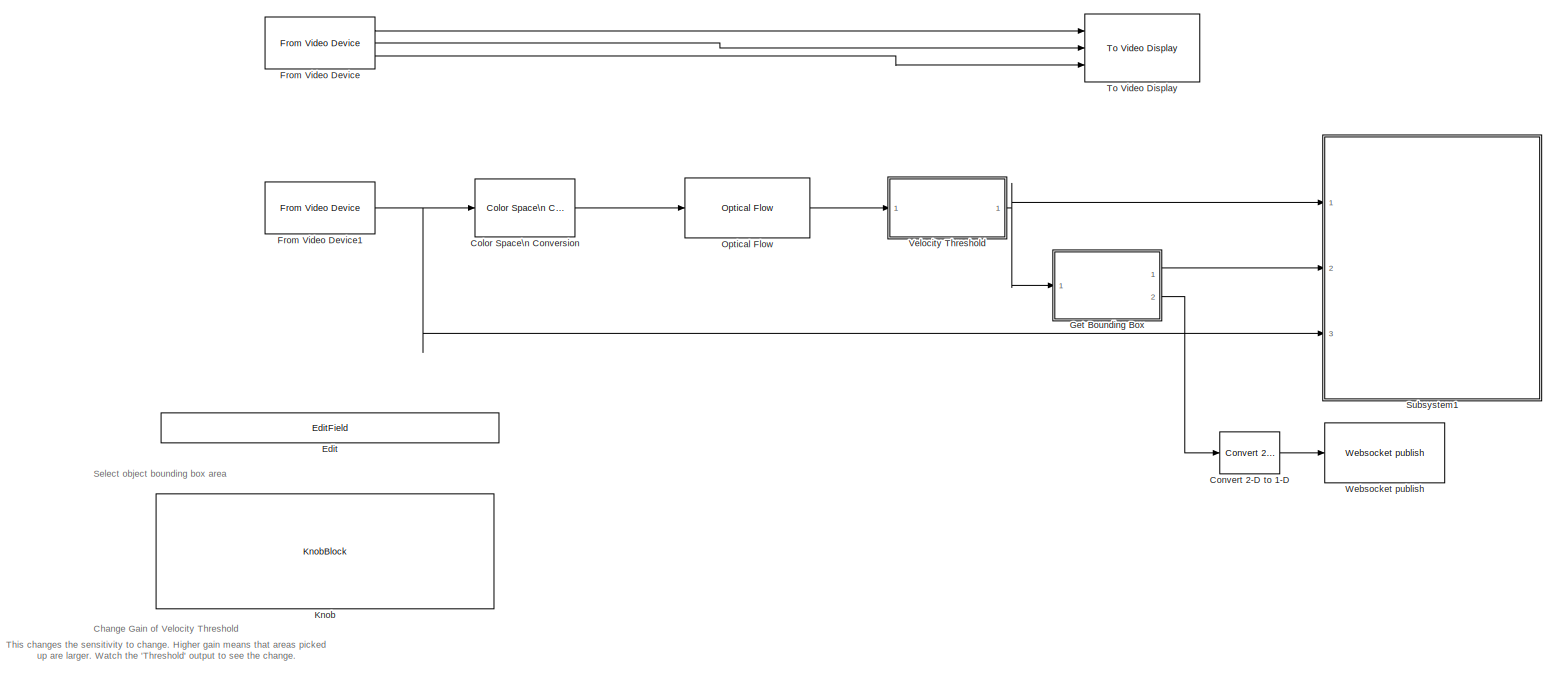
[diagram: root canvas - part 1/1, most of the canvas]
MODEL Optical_Flow_Test
KIND model
BLOCK [Reference] Color Space\n Conversion  REF=visionconversions/Color Space\n Conversion
  MultiThreadCoSim = auto
  Ports = [1, 1]
  SID = 9
  SourceBlock = visionconversions/Color Space\n Conversion
  SourceProductBaseCode = VP
  SourceProductName = Computer Vision Toolbox
  SourceType = Color Space Conversion
  conversion = Obsolete
  conversionActive = R'G'B' to intensity
  imagePorts = One multidimensional signal
  rec = Rec. 601 (SDTV)
  sys = 1125/60/2:1
  wp_str = D65
BLOCK [Reference] Convert 2-D to 1-D  REF=dspsigattribs/Convert 2-D to 1-D
  Ports = [1, 1]
  SID = 49
  SourceBlock = dspsigattribs/Convert 2-D to 1-D
  SourceProductBaseCode = DS
  SourceProductName = DSP System Toolbox
  SourceType = Convert 2-D to 1-D
BLOCK [EditField] Edit
  Alignment = Center
  BindingPersistence = DataTag1
  LabelPosition = Bottom
  SID = 39
  ShowInitialText = on
BLOCK [Reference] From Video Device  REF=imaqlib/From Video Device
  BayerSensorAlignment = grbg
  BlockHandle = 4.0002
  CanDoHWTrigger = no
  Commented = on
  DataType = double
  DevXMLPath = <path>
  Device = winvideo 1 (USB_Camera)
  DeviceMenu = winvideo 1 (USB_Camera)
  EnableHWTrigger = off
  EngLibPath = <path>
  EngXMLPath = <path>
  ImaqMode = off
  MultiThreadCoSim = auto
  ObjConstructor = videoinput('winvideo', 1)
  OutputPortsMode = Separate color signals
  Ports = [0, 3]
  ROIColumn = 0
  ROIHeight = 1080
  ROIPosition = [0 0 1080 1920]
  ROIRow = 0
  ROIWidth = 1920
  ReturnedColorSpace = rgb
  SID = 1
  SampleTime = 1/30
  SourceBlock = imaqlib/From Video Device
  SourceProductBaseCode = IA
  SourceProductName = Image Acquisition Toolbox
  SourceType = From Video Device
  TriggerConfiguration = none/none
  UserData = DataTag2
  UserDataPersistent = on
  VideoFormat = MJPG_1920x1080
  VideoFormatMenu = MJPG_1920x1080
  VideoSource = input1
BLOCK [Reference] From Video Device1  REF=imaqlib/From Video Device
  BayerSensorAlignment = grbg
  BlockHandle = 4.0002
  CanDoHWTrigger = no
  DataType = single
  DevXMLPath = <path>
  Device = winvideo 1 (USB_Camera)
  DeviceMenu = winvideo 1 (USB_Camera)
  EnableHWTrigger = off
  EngLibPath = <path>
  EngXMLPath = <path>
  ImaqMode = off
  MultiThreadCoSim = auto
  ObjConstructor = videoinput('winvideo', 1)
  OutputPortsMode = One multidimensional signal
  Ports = [0, 1]
  ROIColumn = 0
  ROIHeight = 1080
  ROIPosition = [0 0 1080 1920]
  ROIRow = 0
  ROIWidth = 1920
  ReturnedColorSpace = rgb
  SID = 4
  SampleTime = 1/30
  SourceBlock = imaqlib/From Video Device
  SourceProductBaseCode = IA
  SourceProductName = Image Acquisition Toolbox
  SourceType = From Video Device
  TriggerConfiguration = none/none
  UserData = DataTag3
  UserDataPersistent = on
  VideoFormat = MJPG_1920x1080
  VideoFormatMenu = MJPG_1920x1080
  VideoSource = input1
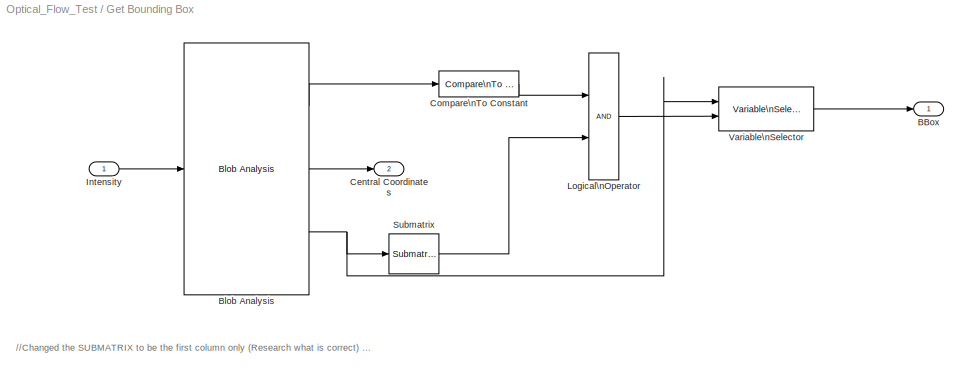
BLOCK [SubSystem] Get Bounding Box
  Ports = [1, 2]
  RequestExecContextInheritance = off
  SID = 32
BLOCK [Outport] Get Bounding Box/BBox
  IconDisplay = Port number
  SID = 34
BLOCK [Reference] Get Bounding Box/Blob Analysis  REF=visionstatistics/Blob Analysis
  LockScale = off
  MultiThreadCoSim = auto
  Ports = [1, 3]
  SID = 35
  SourceBlock = visionstatistics/Blob Analysis
  SourceProductBaseCode = VP
  SourceProductName = Computer Vision Toolbox
  SourceType = Blob Analysis
  Tag = vipblks_row_conv
  accumFracLength = 0
  accumMode = Binary point scaling
  accumSlope = 2^0
  accumWordLength = 32
  angle = off
  area = on
  bBox = on
  centroid = on
  conn = 8
  eccentricity = off
  equivDiameterSq = off
  excludeBorderBlob = off
  extent = off
  fillValues = -1
  firstCoeffFracLength = 14
  firstCoeffMode = Binary point scaling
  firstCoeffSlope = 2^-14
  firstCoeffWordLength = 16
  isCount = off
  isFill = on
  isLabel = off
  isOutVarDim = off
  majorAxis = off
  maxArea = intmax('uint32')
  maxBlobs = 50
  memoryFracLength = 16
  memoryMode = Same as product output
  memorySlope = 2^-16
  memoryWordLength = 32
  minArea = 0
  minorAxis = off
  outDT = double
  outputFracLength = 16
  outputMode = Binary point scaling
  outputSlope = 2^-16
  outputWordLength = 32
  overflowMode = off
  perimeter = off
  prodOutputFracLength = 16
  prodOutputMode = Binary point scaling
  prodOutputSlope = 2^-16
  prodOutputWordLength = 32
  roundingMode = Floor
  secondCoeffFracLength = 16
  secondCoeffMode = Binary point scaling
  secondCoeffSlope = 2^-16
  secondCoeffWordLength = 32
  useMaxArea = off
  useMinArea = off
  warnIfNumBlobsExceeded = on
BLOCK [Outport] Get Bounding Box/Central Coordinates
  IconDisplay = Port number
  Port = 2
  SID = 45
BLOCK [Reference] Get Bounding Box/Compare\nTo Constant  REF=simulink/Logic and Bit\nOperations/Compare\nTo Constant
  OutDataTypeStr = boolean
  Ports = [1, 1]
  SID = 36
  SourceBlock = simulink/Logic and Bit\nOperations/Compare\nTo Constant
  SourceProductBaseCode = SL
  SourceProductName = Simulink
  SourceType = Compare To Constant
  ZeroCross = on
  const = 1500
  relop = >=
BLOCK [Inport] Get Bounding Box/Intensity
  IconDisplay = Port number
  SID = 33
BLOCK [Logic] Get Bounding Box/Logical\nOperator
  AllPortsSameDT = off
  OutDataTypeStr = boolean
  Ports = [2, 1]
  SID = 43
BLOCK [Reference] Get Bounding Box/Submatrix  REF=dspmtrx3/Submatrix
  ColEndIndex = 1
  ColEndMode = Last
  ColSpan = One column
  ColStartIndex = 1
  ColStartMode = First
  MultiThreadCoSim = auto
  Ports = [1, 1]
  RowEndIndex = 1
  RowEndMode = Last
  RowSpan = All rows
  RowStartIndex = 1
  RowStartMode = First
  SID = 42
  SourceBlock = dspmtrx3/Submatrix
  SourceProductBaseCode = DS
  SourceProductName = DSP System Toolbox
  SourceType = Submatrix
BLOCK [Reference] Get Bounding Box/Variable\nSelector  REF=dspindex/Variable\nSelector
  Elements = [1 3]
  FillMode = on
  FillValues = 0
  IdxMode = Variable
  MultiThreadCoSim = auto
  NumInputs = 1
  Ports = [2, 1]
  SID = 44
  ShowPortLabels = off
  SourceBlock = dspindex/Variable\nSelector
  SourceProductBaseCode = DS
  SourceProductName = DSP System Toolbox
  SourceType = Variable Selector
  ZerOneIdxMode = One-based
  errmode = Clip Index
  rowsOrCols = Rows
BLOCK [KnobBlock] Knob
  BindingPersistence = DataTag4
  SID = 55
  ScaleMax = 10
  ScaleMin = 1
BLOCK [Reference] Optical Flow  REF=visionanalysis/Optical Flow
  LockScale = off
  N = 1
  Ports = [1, 1]
  SID = 10
  SourceBlock = visionanalysis/Optical Flow
  SourceProductBaseCode = VP
  SourceProductName = Computer Vision Toolbox
  SourceType = Optical Flow
  accumFracLength = 20
  accumMode = Same as product output
  accumSlope = 2^-20
  accumWordLength = 32
  discardNormalFlow = off
  eigTh = 0.0039
  firstCoeffFracLength = 12
  firstCoeffMode = Same word length as first input
  firstCoeffSlope = 2^-20
  firstCoeffWordLength = 16
  gradMethod = Difference filter [-1 1]
  lambda = 1
  maxAllowAbsDiff = eps
  maxIter = 10
  memoryFracLength = 20
  memoryMode = Same as accumulator
  memorySlope = 2^-20
  memoryWordLength = 32
  method = Horn-Schunck
  numInports = 3
  outVelForm = Horizontal and vertical components in complex form
  outputCurrentImage = off
  outputFracLength = 20
  outputMode = Binary point scaling
  outputSlope = 2^-20
  outputWordLength = 32
  overflowMode = on
  prodOutputFracLength = 20
  prodOutputMode = Binary point scaling
  prodOutputSlope = 2^-20
  prodOutputWordLength = 32
  roundingMode = Nearest
  sigmaS = 1.5
  sigmaW = 1
  stop_criteria = When maximum number of iterations is reached
  which2img = Current frame and N-th frame back
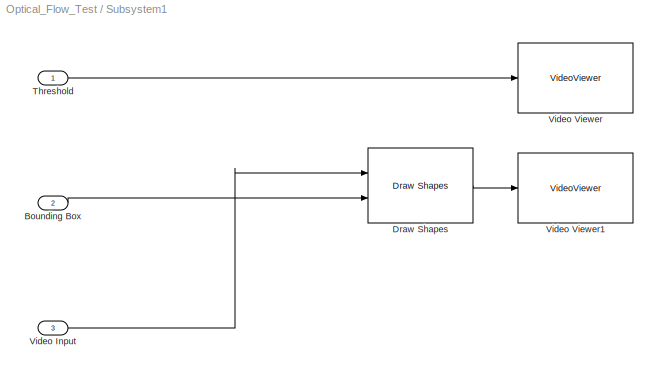
BLOCK [SubSystem] Subsystem1
  Ports = [3]
  RequestExecContextInheritance = off
  SID = 17
BLOCK [Inport] Subsystem1/Bounding Box
  IconDisplay = Port number
  Port = 2
  SID = 20
BLOCK [Reference] Subsystem1/Draw Shapes  REF=visiontextngfix/Draw Shapes
  LockScale = off
  MultiThreadCoSim = auto
  Ports = [2, 1]
  SID = 53
  SourceBlock = visiontextngfix/Draw Shapes
  SourceProductBaseCode = VP
  SourceProductName = Computer Vision Toolbox
  SourceType = Draw Shapes
  accumFracLength = 14
  accumMode = Same as product output
  accumSlope = 2^-14
  accumWordLength = 32
  antialiasing = off
  color = [0 255 0]
  display = User-specified value
  fill = off
  fillClrSource = Specify via dialog
  imagePorts = One multidimensional signal
  inType = Obsolete
  intensity = 200
  lineWidth = 1
  memoryFracLength = 15
  memoryMode = Specify word length
  memoryWordLength = 16
  opacity = 0.6
  overflowMode = off
  prodOutputFracLength = 14
  prodOutputMode = Binary point scaling
  prodOutputSlope = 2^-14
  prodOutputWordLength = 32
  roundingMode = Floor
  shape = Rectangles
  viewport = Entire image
BLOCK [Inport] Subsystem1/Threshold
  IconDisplay = Port number
  SID = 18
BLOCK [Inport] Subsystem1/Video Input
  IconDisplay = Port number
  Port = 3
  SID = 21
BLOCK [VideoViewer] Subsystem1/Video Viewer
  FigPos = [962 1037 958 409]
  Ports = [1]
  SID = 52
  ScopeSpecificationString = vipscopes.VideoViewerScopeCfg('CurrentConfiguration', extmgr.ConfigurationSet(extmgr.Configuration('Core','General UI',true),extmgr.Configuration('Core','Source UI',true),extmgr.Configuration('Sources','WiredSimulink',true),extmgr.Configuration('Visuals','Video',true),extmgr.Configuration('Tools','Image Navigation Tools',true),extmgr.Configuration('Tools','Image Tool',true),extmgr.Configuration('T...<+100ch>
BLOCK [VideoViewer] Subsystem1/Video Viewer1
  FigPos = [4 528 958 409]
  Ports = [1]
  SID = 54
  ScopeSpecificationString = vipscopes.VideoViewerScopeCfg('CurrentConfiguration', extmgr.ConfigurationSet(extmgr.Configuration('Core','General UI',true),extmgr.Configuration('Core','Source UI',true),extmgr.Configuration('Sources','WiredSimulink',true),extmgr.Configuration('Visuals','Video',true),extmgr.Configuration('Tools','Image Navigation Tools',true),extmgr.Configuration('Tools','Image Tool',true),extmgr.Configuration('T...<+73ch>
BLOCK [Reference] To Video Display  REF=visionsinks/To Video Display
  Commented = on
  MultiThreadCoSim = auto
  OutputDevice = On-screen video monitor
  Ports = [3]
  SID = 2
  SourceBlock = visionsinks/To Video Display
  SourceProductBaseCode = VP
  SourceProductName = Computer Vision Toolbox
  SourceType = To Video Display
  dataOrg = Column-major
  fullScreen = off
  imagePorts = Separate color signals
  inputColorFormat = RGB
  inputType = Obsolete
  isWindowOpen = off
  openAtMdlStart = on
  saveWindowSize = off
  videoWindowHeight = 2147483647
  videoWindowWidth = 2147483647
  videoWindowX = 536805376
  videoWindowY = 536805376
  windowSizeMode = Normal
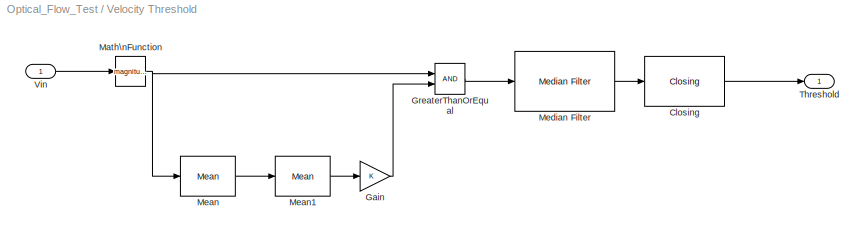
BLOCK [SubSystem] Velocity Threshold
  Ports = [1, 1]
  RequestExecContextInheritance = off
  SID = 13
BLOCK [Reference] Velocity Threshold/Closing  REF=visionmorphops/Closing
  MultiThreadCoSim = auto
  Ports = [1, 1]
  SID = 31
  SourceBlock = visionmorphops/Closing
  SourceProductBaseCode = VP
  SourceProductName = Computer Vision Toolbox
  SourceType = Closing
  nhoodsrc = Specify via dialog
  strel = strel('line',5,45)
BLOCK [Gain] Velocity Threshold/Gain
  OutDataTypeStr = Inherit: Inherit via internal rule
  ParamDataTypeStr = Inherit: Inherit via internal rule
  SID = 29
  SaturateOnIntegerOverflow = off
BLOCK [RelationalOperator] Velocity Threshold/GreaterThanOrEqual
  InputSameDT = off
  OutDataTypeStr = boolean
  Ports = [2, 1]
  RndMeth = Simplest
  SID = 25
BLOCK [Math] Velocity Threshold/Math\nFunction
  Operator = magnitude^2
  Ports = [1, 1]
  SID = 24
  SignedPower = off
BLOCK [Reference] Velocity Threshold/Mean  REF=dspstat3/Mean
  InputProcessing = Columns as channels (frame based)
  LockScale = off
  MultiThreadCoSim = auto
  Ports = [1, 1]
  SID = 26
  SourceBlock = dspstat3/Mean
  SourceProductBaseCode = DS
  SourceProductName = DSP System Toolbox
  SourceType = Mean
  UserData = DataTag5
  UserDataPersistent = on
  accumDataTypeStr = Inherit: Same as input
  accumFracLength = 30
  accumLastDataTypeStr = Inherit: Same as input
  accumMode = Same as input
  accumWordLength = 32
  additionalParams = off
  allowOverrides = on
  dimension = 1
  directionMode = Entire input
  outputDataTypeStr = Inherit: Same as accumulator
  outputFracLength = 30
  outputLastDataTypeStr = Inherit: Same as accumulator
  outputMax = []
  outputMin = []
  outputMode = Same as accumulator
  outputWordLength = 32
  overflowMode = off
  reset_popup = None
  roiEnable = off
  roiFlag = off
  roiOutput = Individual statistics for each ROI
  roiPortion = Entire ROI
  roiType = Rectangles
  roundingMode = Floor
  run = off
BLOCK [Reference] Velocity Threshold/Mean1  REF=dspstat3/Mean
  InputProcessing = Columns as channels (frame based)
  LockScale = off
  MultiThreadCoSim = auto
  Ports = [1, 1]
  SID = 28
  SourceBlock = dspstat3/Mean
  SourceProductBaseCode = DS
  SourceProductName = DSP System Toolbox
  SourceType = Mean
  UserData = DataTag6
  UserDataPersistent = on
  accumDataTypeStr = Inherit: Same as input
  accumFracLength = 30
  accumLastDataTypeStr = Inherit: Same as input
  accumMode = Same as input
  accumWordLength = 32
  additionalParams = off
  allowOverrides = on
  dimension = 1
  directionMode = Each column
  outputDataTypeStr = Inherit: Same as accumulator
  outputFracLength = 30
  outputLastDataTypeStr = Inherit: Same as accumulator
  outputMax = []
  outputMin = []
  outputMode = Same as accumulator
  outputWordLength = 32
  overflowMode = off
  reset_popup = None
  roiEnable = off
  roiFlag = off
  roiOutput = Individual statistics for each ROI
  roiPortion = Entire ROI
  roiType = Rectangles
  roundingMode = Floor
  run = on
BLOCK [Reference] Velocity Threshold/Median Filter  REF=visionanalysis/Median Filter
  LockScale = off
  MultiThreadCoSim = auto
  Ports = [1, 1]
  SID = 30
  SourceBlock = visionanalysis/Median Filter
  SourceProductBaseCode = VP
  SourceProductName = Computer Vision Toolbox
  SourceType = Median Filter
  accumFracLength = 30
  accumMode = Same as input
  accumSlope = 2^-30
  accumWordLength = 32
  nghbood = [3 3]
  outSize = Same as input port I
  outputFracLength = 15
  outputMode = Same as input
  outputSlope = 2^-15
  outputWordLength = 16
  overflowMode = off
  padSrc = Specify via dialog
  padType = Constant
  padVal = 0
  prodOutputFracLength = 30
  prodOutputMode = Same as input
  prodOutputSlope = 2^-30
  prodOutputWordLength = 32
  roundingMode = Floor
BLOCK [Outport] Velocity Threshold/Threshold
  IconDisplay = Port number
  SID = 15
BLOCK [Inport] Velocity Threshold/Vin
  IconDisplay = Port number
  SID = 14
BLOCK [Reference] Websocket publish  REF=raspberrypilib/Websocket publish
  IPAddress = 127.0.0.1
  NumberOfSignals = 1
  Port = 9000
  Ports = [1]
  SID = 46
  SourceBlock = raspberrypilib/Websocket publish
  SourceProductBaseCode = RASPPI
  SourceProductName = Simulink Support Package for Raspberry Pi Hardware
  SourceType = codertarget.raspi.internal.webPublish
  UniqueBlockID = webPub 1
ANNOTATION (root): \n \n Select object bounding box area \n
ANNOTATION (root): \n \n Change Gain of Velocity Threshold \n
ANNOTATION (root): This changes the sensitivity to change. Higher gain means that areas picked\nup are larger. Watch the 'Threshold' output to see the change.
ANNOTATION Get Bounding Box: //Changed the SUBMATRIX to be the first column only (Research what is correct) ---> Default is all columns (50x4)//
LINE Color Space\n Conversion:1 -> Optical Flow:1
LINE Convert 2-D to 1-D:1 -> Websocket publish:1
NET From Video Device1:1 -> Color Space\n Conversion:1, Subsystem1:3
LINE From Video Device:1 -> To Video Display:1
LINE From Video Device:2 -> To Video Display:2
LINE From Video Device:3 -> To Video Display:3
LINE Get Bounding Box/Blob Analysis:1 -> Get Bounding Box/Compare\nTo Constant:1
LINE Get Bounding Box/Blob Analysis:2 -> Get Bounding Box/Central Coordinates:1
NET Get Bounding Box/Blob Analysis:3 -> Get Bounding Box/Submatrix:1, Get Bounding Box/Variable\nSelector:1
LINE Get Bounding Box/Compare\nTo Constant:1 -> Get Bounding Box/Logical\nOperator:1
LINE Get Bounding Box/Intensity:1 -> Get Bounding Box/Blob Analysis:1
LINE Get Bounding Box/Logical\nOperator:1 -> Get Bounding Box/Variable\nSelector:2
LINE Get Bounding Box/Submatrix:1 -> Get Bounding Box/Logical\nOperator:2
LINE Get Bounding Box/Variable\nSelector:1 -> Get Bounding Box/BBox:1
LINE Get Bounding Box:1 -> Subsystem1:2
LINE Get Bounding Box:2 -> Convert 2-D to 1-D:1
LINE Optical Flow:1 -> Velocity Threshold:1
LINE Subsystem1/Bounding Box:1 -> Subsystem1/Draw Shapes:2
LINE Subsystem1/Draw Shapes:1 -> Subsystem1/Video Viewer1:1
LINE Subsystem1/Threshold:1 -> Subsystem1/Video Viewer:1
LINE Subsystem1/Video Input:1 -> Subsystem1/Draw Shapes:1
LINE Velocity Threshold/Closing:1 -> Velocity Threshold/Threshold:1
LINE Velocity Threshold/Gain:1 -> Velocity Threshold/GreaterThanOrEqual:2
LINE Velocity Threshold/GreaterThanOrEqual:1 -> Velocity Threshold/Median Filter:1
NET Velocity Threshold/Math\nFunction:1 -> Velocity Threshold/GreaterThanOrEqual:1, Velocity Threshold/Mean:1
LINE Velocity Threshold/Mean1:1 -> Velocity Threshold/Gain:1
LINE Velocity Threshold/Mean:1 -> Velocity Threshold/Mean1:1
LINE Velocity Threshold/Median Filter:1 -> Velocity Threshold/Closing:1
LINE Velocity Threshold/Vin:1 -> Velocity Threshold/Math\nFunction:1
NET Velocity Threshold:1 -> Get Bounding Box:1, Subsystem1:1
note: NET lines group one-source signal fan-out (src -> all destinations, sorted); 1:1 wires keep LINE
note: 6 file-system paths scrubbed to <path> (not preserved elsewhere — flat text is the only slx artifact)
